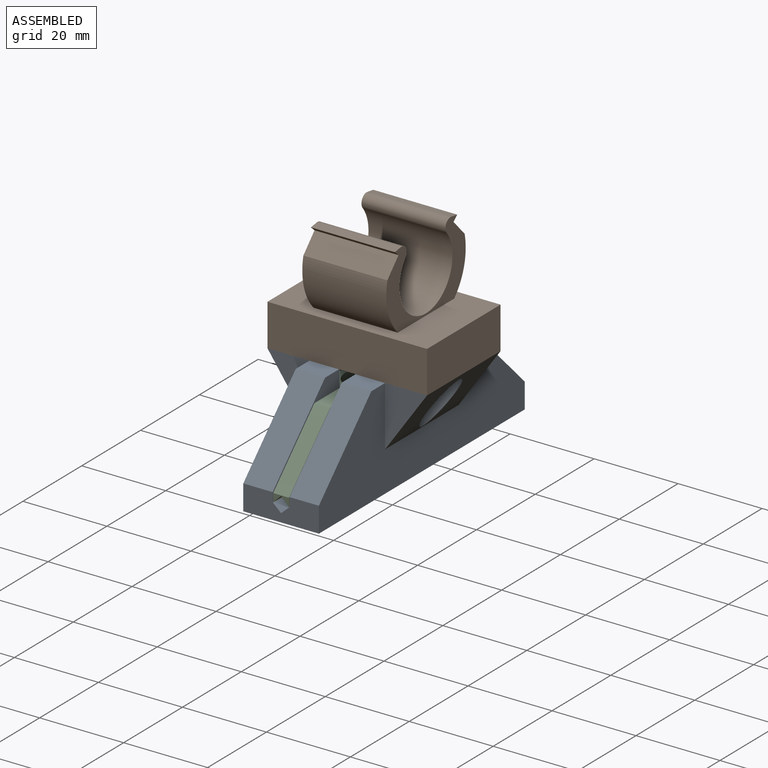
[diagram: assembled view]
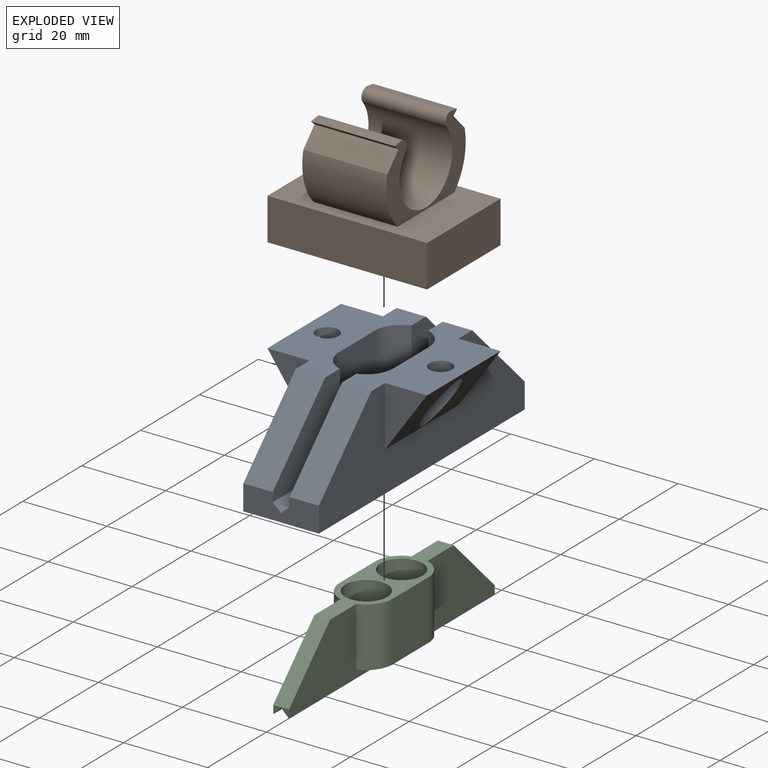
[diagram: exploded view]
GUIDED TOUR — FREECAD ASSEMBLY "Alweco_GreenHouse_Shade_Assembly"

This assembly has 3 components, labeled P0..P2 below (a component is one placed body or linked part; the same part can appear more than once), held together by 2 modeled joints. A joint is a constraint between two components; its type names the relative motion it leaves free:
  FASTENED — locks the two components together rigidly (no relative motion),
  SLIDER — leaves translation along the listed axis free.
Axis/direction vectors are unit vectors and 'through' points are millimeter coordinates, both in the assembly's world frame.

MATES
  1. SLIDER [Slider] "Joint": P0 <-> P2, axis (0.000, 0.000, -1.000) through (6.50, 6.00, 13.83) mm
  2. FASTENED [Fixed] "Joint001": P1 <-> P0, direction (0.000, 0.000, -1.000) through (16.00, -9.50, 23.83) mm

ASSEMBLY ORDER
  1. P0 — the base component [order heuristic]
  2. P2 — core [order heuristic]
  3. P1 [order verified]
Order-tag legend:
  [order verified] — this step's position reverses a verified removal order: the component was checked to insert without passing through the ones already placed.
  [order heuristic] — the first 2 components form the assembly's core: parts whose collision-free extraction could not be verified, listed in mate-graph order.

Of the 3 components, 3 carry a construction recipe — the FreeCAD feature program (sketches with constraints, then the solid features that consume them) that regenerates the part from scratch, quoted from this document or from the linked companion document it references; the rest are supplied as boundary geometry only. The tour below walks the components in assembly order: each is shown spotlighted twice — in the assembled view, then in the exploded view, where a leader line traces a displaced component back to its assembled socket (components that stay in place when exploded have no leader line; saturated green if recipe-attached, orange if geometry-only; every other component desaturated gray) — followed by its recipe or geometry summary and the mates that hold it.
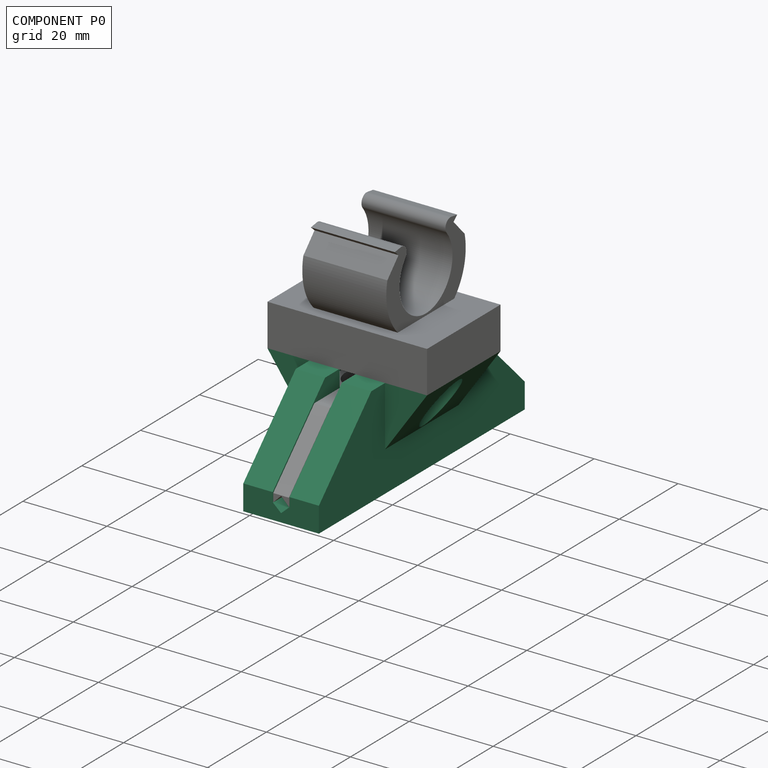
[diagram: component P0 — assembled]
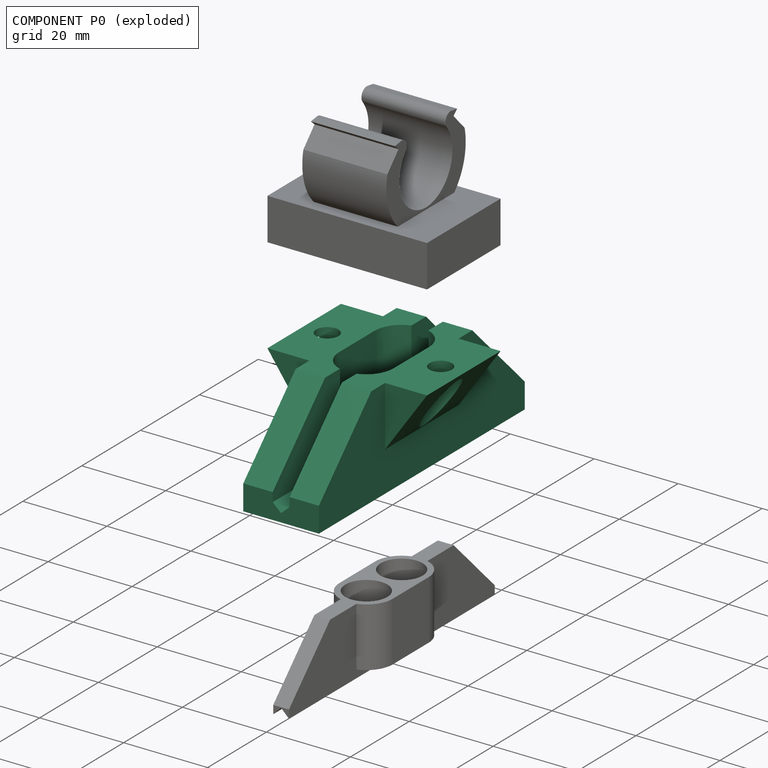
[diagram: component P0 — exploded]
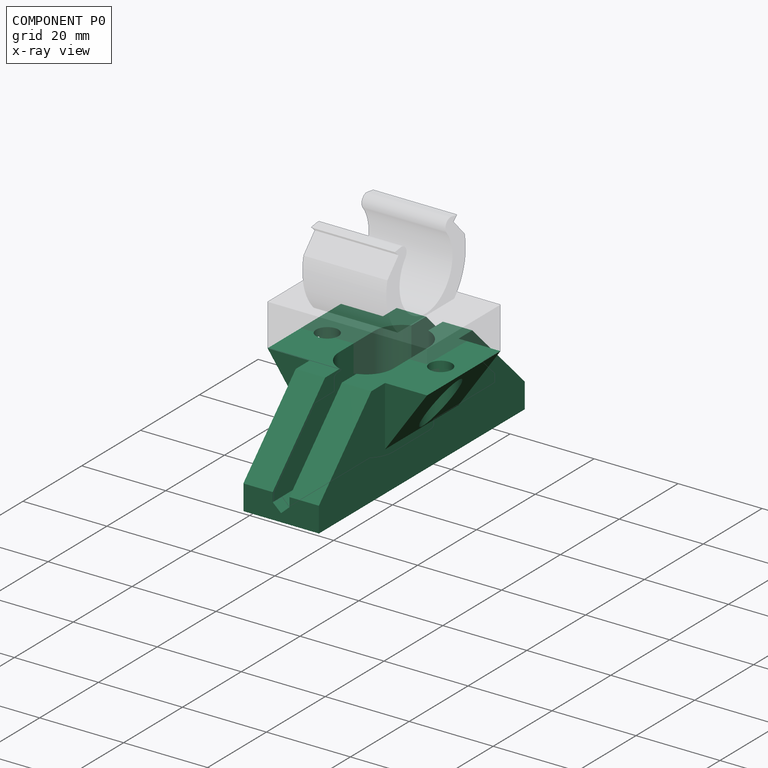
[diagram: component P0 — x-ray view]
COMPONENT P0 — recipe-attached ("Alweco_GreenHouse_Shade_Base", a linked part whose construction recipe lives in a companion FreeCAD document of the same project; that document's serialized recipe follows).
Held by: SLIDER mate "Joint" to P2; FASTENED mate "Joint001" to P1.
Construction recipe (the companion document, serialized — sketch geometry with constraints, then the solid features built on it; lengths are millimeters unless a unit is written):

FCSTD DOCUMENT  (FreeCAD 1.0R39109 (Git))
Label: Alweco_GreenHouse_Shade_Base
License: All rights reserved
objects: Sketcher::SketchObject×5, PartDesign::Pad×2, PartDesign::Pocket×2, PartDesign::Hole×1, PartDesign::Body×1
note: 26 computed .brp shape members not serialized (recipe doc carries the construction recipe); baked Part::Feature solids carry a one-line shape summary decoded from their .brp

FEATURE [Sketcher::SketchObject] Sketch
  ArcFitTolerance = 1e-06
  AttachmentSupport = -> [XZ_Plane]
  FullyConstrained = true
  MakeInternals = false
  MapMode = 5
  Placement = pos=(0,0,0) rot=(1,0,0;1.5708rad)
  sketch-geometry (9):
    g0: LineSegment StartX=-9 StartY=0 StartZ=0 EndX=9 EndY=0 EndZ=0
    g1: LineSegment StartX=0 StartY=2 StartZ=0 EndX=-2 EndY=3.83266 EndZ=0
    g2: LineSegment StartX=0 StartY=2 StartZ=0 EndX=2 EndY=3.83266 EndZ=0
    g3: LineSegment StartX=2 StartY=3.83266 StartZ=0 EndX=2 EndY=23.8327 EndZ=0
    g4: LineSegment StartX=-2 StartY=3.83266 StartZ=0 EndX=-2 EndY=23.8327 EndZ=0
    g5: LineSegment StartX=-2 StartY=23.8327 StartZ=0 EndX=-9 EndY=23.8327 EndZ=0
    g6: LineSegment StartX=2 StartY=23.8327 StartZ=0 EndX=9 EndY=23.8327 EndZ=0
    g7: LineSegment StartX=9 StartY=23.8327 StartZ=0 EndX=9 EndY=0 EndZ=0
    g8: LineSegment StartX=-9 StartY=23.8327 StartZ=0 EndX=-9 EndY=0 EndZ=0
  constraints (26):
    c: PointOnObject(g0,g-1)
    c: PointOnObject(g0,g-1)
    c: PointOnObject(g1,g-2)
    c: Coincident(g2,g1)
    c: Symmetric(g1,g2,g-2)
    c: DistanceX(g1,g2) = 4
    c: Angle(g2,g1) = 1.65806
    c: Coincident(g3,g2)
    c: Vertical(g3)
    c: Coincident(g4,g1)
    c: Symmetric(g4,g3,g-2)
    c: DistanceY(g3,g3) = 20  'InnerHeight'
    c: DistanceY(g-1,g1) = 2
    c: Coincident(g5,g4)
    c: Horizontal(g5)
    c: Coincident(g6,g3)
    c: Coincident(g7,g6)
    c: Coincident(g7,g0)
    c: Coincident(g8,g5)
    c: Coincident(g8,g0)
    c: Vertical(g8)
    c: Vertical(g7)
    c: Symmetric(g6,g5,g-2)
    c: DistanceX(g6,g6) = 7
    c: DistanceY(g8,g8) = 23.8327  'Height'
    c: DistanceX(g0,g0) = 18  'Width'
FEATURE [PartDesign::Pad] Pad
  Direction = (0,-1,2e-16)
  Length = 70
  Length2 = 10
  Midplane = true
  Placement = pos=(0,0,0) rot=(1,0,0;1.5708rad)
  Profile = -> Sketch
  ReferenceAxis = -> Sketch [N_Axis]
  Refine = true
  Suppressed = false
  Type = 0
FEATURE [Sketcher::SketchObject] Sketch001
  ArcFitTolerance = 1e-06
  AttachmentSupport = -> [Pad]
  FullyConstrained = true
  MakeInternals = false
  MapMode = 5
  Placement = pos=(0,5.3e-15,23.8327) rot=(0,0,1;3.14159rad)
  expr: .Constraints.Height = 25 mm - .Constraints.Width
  sketch-geometry (4):
    g0: ArcOfCircle CenterX=0 CenterY=6 CenterZ=0 NormalX=0 NormalY=0 NormalZ=1 AngleXU=0 Radius=6.5 StartAngle=0 EndAngle=3.14159
    g1: ArcOfCircle CenterX=0 CenterY=-6 CenterZ=0 NormalX=0 NormalY=0 NormalZ=1 AngleXU=0 Radius=6.5 StartAngle=3.14159 EndAngle=6.28319
    g2: LineSegment StartX=6.5 StartY=6 StartZ=0 EndX=6.5 EndY=-6 EndZ=0
    g3: LineSegment StartX=-6.5 StartY=6 StartZ=0 EndX=-6.5 EndY=-6 EndZ=0
  constraints (9):
    c: Tangent(g0,g2) = 1.5708
    c: Tangent(g0,g3) = -1.5708
    c: Tangent(g1,g2) = 1.5708
    c: Tangent(g1,g3) = -1.5708
    c: Equal(g0,g1)
    c: PointOnObject(g0,g-2)
    c: Symmetric(g0,g1,g-1)
    c: Distance(g1,g1) = 13  'Width'
    c: DistanceY(g1,g0) = 12  'Height'
FEATURE [PartDesign::Pocket] Pocket
  BaseFeature = -> Pad
  Direction = (0,0,-1)
  Length = 20
  Length2 = 5
  Placement = pos=(0,0,0) rot=(1,0,0;1.5708rad)
  Profile = -> Sketch001
  ReferenceAxis = -> Sketch001 [N_Axis]
  Refine = true
  Suppressed = false
  Type = 0
FEATURE [Sketcher::SketchObject] Sketch002
  ArcFitTolerance = 1e-06
  AttachmentSupport = -> [XZ_Plane]
  FullyConstrained = true
  MakeInternals = false
  MapMode = 5
  Placement = pos=(0,0,0) rot=(1,0,0;1.5708rad)
  expr: Constraints[15] = <<Sketch>>.Constraints.Width
  expr: Constraints[5] = <<Sketch>>.Constraints.Height
  sketch-geometry (6):
    g0: LineSegment StartX=9 StartY=23.8327 StartZ=0 EndX=19 EndY=23.8327 EndZ=0
    g1: LineSegment StartX=-9 StartY=23.8327 StartZ=0 EndX=-19 EndY=23.8327 EndZ=0
    g2: LineSegment StartX=19 StartY=23.8327 StartZ=0 EndX=9 EndY=9.55118 EndZ=0
    g3: LineSegment StartX=9 StartY=23.8327 StartZ=0 EndX=9 EndY=9.55118 EndZ=0
    g4: LineSegment StartX=-19 StartY=23.8327 StartZ=0 EndX=-9 EndY=9.55118 EndZ=0
    g5: LineSegment StartX=-9 StartY=9.55118 StartZ=0 EndX=-9 EndY=23.8327 EndZ=0
  constraints (17):
    c: Distance(g0) = 10
    c: Horizontal(g0)
    c: Distance(g1) = 10
    c: Horizontal(g1)
    c: Symmetric(g1,g0,g-2)
    c: DistanceY(g-1,g0) = 23.8327
    c: Coincident(g2,g0)
    c: Coincident(g3,g0)
    c: Coincident(g3,g2)
    c: Vertical(g3)
    c: Coincident(g4,g1)
    c: Coincident(g5,g4)
    c: Coincident(g5,g1)
    c: Symmetric(g2,g4,g-2)
    c: Angle(g0,g2) = 0.959931
    c: DistanceX(g1,g0) = 18
    c: DistanceX(g1,g0) = 38  'FullWidth'
FEATURE [PartDesign::Pad] Pad001
  BaseFeature = -> Pocket
  Direction = (0,-1,2e-16)
  Length = 25
  Length2 = 10
  Midplane = true
  Placement = pos=(0,0,0) rot=(1,0,0;1.5708rad)
  Profile = -> Sketch002
  ReferenceAxis = -> Sketch002 [N_Axis]
  Refine = true
  Suppressed = false
  Type = 0
FEATURE [Sketcher::SketchObject] Sketch003
  ArcFitTolerance = 1e-06
  AttachmentOffset = pos=(0,0,-14) rot=(0,0,1;0rad)
  AttachmentSupport = -> [Pad001]
  FullyConstrained = true
  MakeInternals = false
  MapMode = 5
  Placement = pos=(0,5.3e-15,9.83266) rot=(0,0,1;3.14159rad)
  sketch-geometry (2):
    g0: Circle CenterX=-13.5 CenterY=0 CenterZ=0 NormalX=0 NormalY=0 NormalZ=1 AngleXU=0 Radius=2.5
    g1: Circle CenterX=13.5 CenterY=0 CenterZ=0 NormalX=0 NormalY=0 NormalZ=1 AngleXU=0 Radius=2.5
  constraints (6):
    c: PointOnObject(g0,g-1)
    c: Equal(g1,g0)
    c: Diameter(g1) = 5
    c: Symmetric(g0,g1,g-2)
    c: DistanceX(g0,g-1) = 13.5
    c: Distance(g0,g1) = 27  'HoleSperation'
FEATURE [PartDesign::Hole] Hole
  BaseFeature = -> Pad001
  CustomThreadClearance = 0
  Depth = 25
  DepthType = 0
  Diameter = 5.3
  DrillForDepth = false
  DrillPoint = 1
  DrillPointAngle = 118
  HoleCutCountersinkAngle = 90
  HoleCutCustomValues = false
  HoleCutDepth = 12.3
  HoleCutDiameter = 8.5
  HoleCutType = 1
  ModelThread = false
  Placement = pos=(0,0,0) rot=(1,0,0;1.5708rad)
  Profile = -> Sketch003
  Refine = true
  Reversed = true
  Suppressed = false
  Tapered = false
  TaperedAngle = 90
  ThreadClass = 0
  ThreadDepth = 25
  ThreadDepthType = 0
  ThreadDirection = 0
  ThreadFit = 1
  ThreadSize = 13
  ThreadType = 2
  Threaded = false
  UseCustomThreadClearance = false
FEATURE [Sketcher::SketchObject] Sketch005
  ArcFitTolerance = 1e-06
  AttachmentSupport = -> [YZ_Plane]
  FullyConstrained = true
  MakeInternals = false
  MapMode = 5
  Placement = pos=(0,0,0) rot=(0.57735,0.57735,0.57735;2.0944rad)
  sketch-geometry (6):
    g0: LineSegment StartX=-36 StartY=25 StartZ=0 EndX=-36 EndY=5 EndZ=0
    g1: LineSegment StartX=-36 StartY=25 StartZ=0 EndX=-16 EndY=25 EndZ=0
    g2: LineSegment StartX=-16 StartY=25 StartZ=0 EndX=-36 EndY=5 EndZ=0
    g3: LineSegment StartX=16 StartY=25 StartZ=0 EndX=36 EndY=25 EndZ=0
    g4: LineSegment StartX=36 StartY=25 StartZ=0 EndX=36 EndY=5 EndZ=0
    g5: LineSegment StartX=36 StartY=5 StartZ=0 EndX=16 EndY=25 EndZ=0
  constraints (17):
    c: Vertical(g0)
    c: Coincident(g1,g0)
    c: Horizontal(g1)
    c: Coincident(g2,g1)
    c: Coincident(g2,g0)
    c: Equal(g1,g0)
    c: DistanceX(g1,g1) = 20
    c: Horizontal(g3)
    c: Coincident(g4,g3)
    c: Vertical(g4)
    c: Coincident(g5,g4)
    c: Coincident(g5,g3)
    c: Equal(g1,g3)
    c: Equal(g3,g4)
    c: Symmetric(g0,g3,g-2)
    c: DistanceX(g0,g-1) = 36
    c: DistanceY(g-1,g0) = 25
FEATURE [PartDesign::Pocket] Pocket001
  BaseFeature = -> Hole
  Direction = (-1,0,0)
  Length = 22
  Length2 = 5
  Midplane = true
  Placement = pos=(0,0,0) rot=(1,0,0;1.5708rad)
  Profile = -> Sketch005
  ReferenceAxis = -> Sketch005 [N_Axis]
  Refine = true
  Suppressed = false
  Type = 0
FEATURE [PartDesign::Body] Body  label="Alweco_GreenHouse_Shade_Base"
  AllowCompound = false
  Group = -> [Sketch,Pad,Sketch001,Pocket,Sketch002,Pad001,Sketch003,Hole,Sketch005,Pocket001]
  Origin = -> Origin
  Tip = -> Pocket001
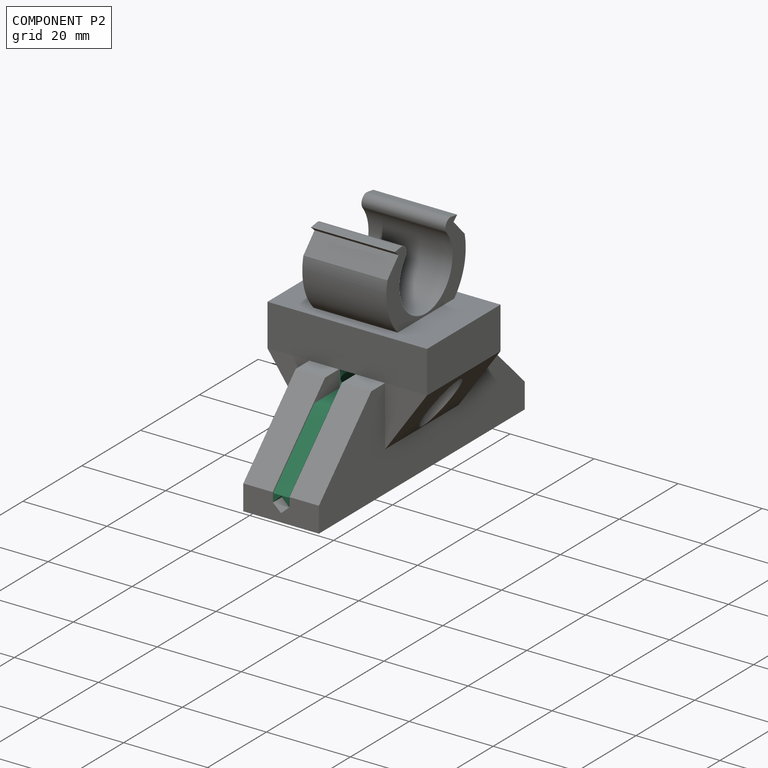
[diagram: component P2 — assembled]
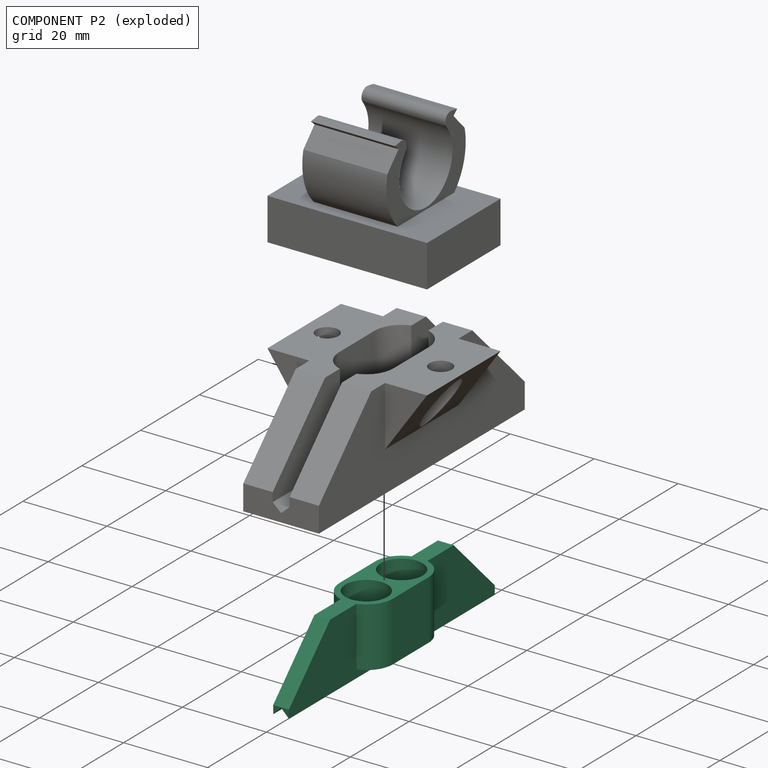
[diagram: component P2 — exploded]
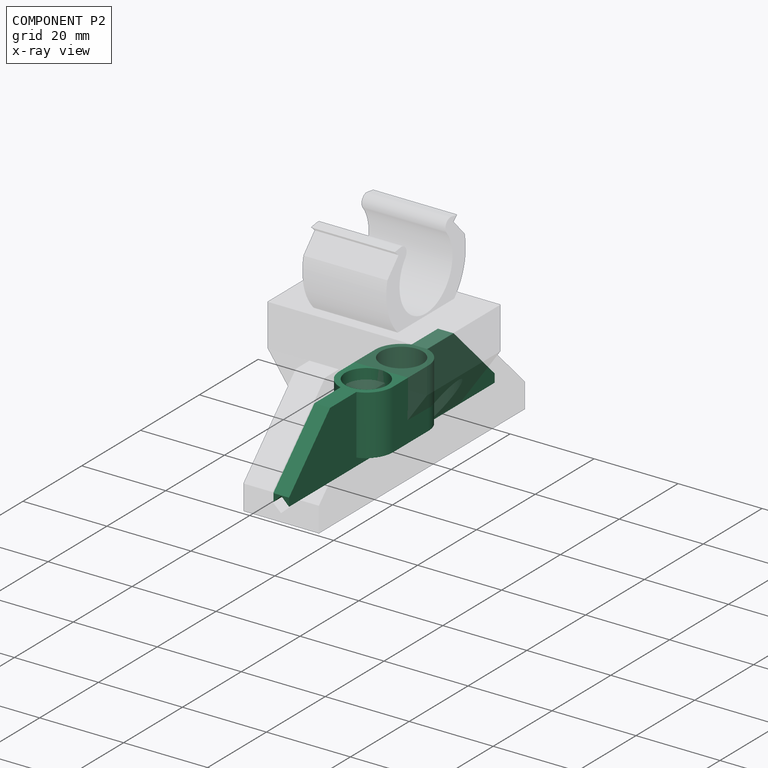
[diagram: component P2 — x-ray view]
COMPONENT P2 — recipe-attached ("Alweco_GreenHouse_Shade_SpringInsert", a linked part whose construction recipe lives in a companion FreeCAD document of the same project; that document's serialized recipe follows).
Held by: SLIDER mate "Joint" to P0.
Construction recipe (the companion document, serialized — sketch geometry with constraints, then the solid features built on it; lengths are millimeters unless a unit is written):

FCSTD DOCUMENT  (FreeCAD 1.0R39109 (Git))
Label: Alweco_GreenHouse_Shade_SpringInsert
License: All rights reserved
objects: Sketcher::SketchObject×4, PartDesign::Pad×2, PartDesign::Pocket×2, PartDesign::Fillet×1, PartDesign::Body×1
note: 24 computed .brp shape members not serialized (recipe doc carries the construction recipe); baked Part::Feature solids carry a one-line shape summary decoded from their .brp
EXTERNAL_REF file=Alweco_GreenHouse_Shade_Base.FCStd obj=Sketch
EXTERNAL_REF file=Alweco_GreenHouse_Shade_Base.FCStd obj=Sketch001

FEATURE [Sketcher::SketchObject] Sketch
  ArcFitTolerance = 1e-06
  AttachmentSupport = -> [XZ_Plane]
  FullyConstrained = true
  MakeInternals = false
  MapMode = 5
  Placement = pos=(0,0,0) rot=(1,0,0;1.5708rad)
  expr: .Constraints.Height = <<Alweco_GreenHouse_Shade_Base>>#<<Sketch>>.Constraints.InnerHeight - 4 mm
  expr: Constraints[9] = 3.75 mm
  sketch-geometry (5):
    g0: LineSegment StartX=0 StartY=1.875 StartZ=0 EndX=-1.875 EndY=0 EndZ=0
    g1: LineSegment StartX=0 StartY=1.875 StartZ=0 EndX=1.875 EndY=0 EndZ=0
    g2: LineSegment StartX=-1.875 StartY=0 StartZ=0 EndX=-1.875 EndY=16 EndZ=0
    g3: LineSegment StartX=1.875 StartY=0 StartZ=0 EndX=1.875 EndY=16 EndZ=0
    g4: LineSegment StartX=-1.875 StartY=16 StartZ=0 EndX=1.875 EndY=16 EndZ=0
  constraints (15):
    c: PointOnObject(g0,g-2)
    c: Coincident(g1,g0)
    c: Symmetric(g0,g1,g-2)
    c: Coincident(g2,g0)
    c: Vertical(g2)
    c: Coincident(g3,g1)
    c: Vertical(g3)
    c: PointOnObject(g1,g-1)
    c: Angle(g0,g1) = 1.5708
    c: DistanceX(g0,g1) = 3.75
    c: Coincident(g4,g2)
    c: Coincident(g4,g3)
    c: Horizontal(g4)
    c: DistanceY(g3,g3) = 16  'Height'
    c: DistanceY(g-1,g0) = 1.875  'SlotHeight'
FEATURE [PartDesign::Pad] Pad
  Direction = (0,-1,2e-16)
  Length = 70
  Length2 = 10
  Midplane = true
  Placement = pos=(0,0,0) rot=(1,0,0;1.5708rad)
  Profile = -> Sketch
  ReferenceAxis = -> Sketch [N_Axis]
  Refine = true
  Suppressed = false
  Type = 0
FEATURE [Sketcher::SketchObject] Sketch001
  ArcFitTolerance = 1e-06
  AttachmentSupport = -> [Pad]
  FullyConstrained = true
  MakeInternals = false
  MapMode = 5
  Placement = pos=(0,3.6e-15,16) rot=(0,0,1;3.14159rad)
  expr: Constraints[7] = <<Alweco_GreenHouse_Shade_Base>>#<<Sketch001>>.Constraints.Height
  expr: Constraints[8] = <<Alweco_GreenHouse_Shade_Base>>#<<Sketch001>>.Constraints.Width - 0.3 mm
  sketch-geometry (4):
    g0: ArcOfCircle CenterX=0 CenterY=6 CenterZ=0 NormalX=0 NormalY=0 NormalZ=1 AngleXU=0 Radius=6.35 StartAngle=1e-16 EndAngle=3.14159
    g1: ArcOfCircle CenterX=0 CenterY=-6 CenterZ=0 NormalX=0 NormalY=0 NormalZ=1 AngleXU=0 Radius=6.35 StartAngle=3.14159 EndAngle=6.28319
    g2: LineSegment StartX=6.35 StartY=6 StartZ=0 EndX=6.35 EndY=-6 EndZ=0
    g3: LineSegment StartX=-6.35 StartY=6 StartZ=0 EndX=-6.35 EndY=-6 EndZ=0
  constraints (9):
    c: Tangent(g0,g2) = 1.5708
    c: Tangent(g0,g3) = -1.5708
    c: Tangent(g1,g2) = 1.5708
    c: Tangent(g1,g3) = -1.5708
    c: Equal(g0,g1)
    c: PointOnObject(g0,g-2)
    c: Symmetric(g0,g1,g-1)
    c: DistanceY(g1,g0) = 12
    c: Distance(g1,g1) = 12.7
FEATURE [PartDesign::Pad] Pad001
  BaseFeature = -> Pad
  Direction = (0,0,1)
  Length = 14.125
  Length2 = 10
  Placement = pos=(0,0,0) rot=(1,0,0;1.5708rad)
  Profile = -> Sketch001
  ReferenceAxis = -> Sketch001 [N_Axis]
  Refine = true
  Reversed = true
  Suppressed = false
  Type = 0
  expr: Length = <<Sketch>>.Constraints.Height - <<Sketch>>.Constraints.SlotHeight
FEATURE [Sketcher::SketchObject] Sketch005  label="Sketch002"
  ArcFitTolerance = 1e-06
  AttachmentSupport = -> [YZ_Plane]
  FullyConstrained = true
  MakeInternals = false
  MapMode = 5
  Placement = pos=(0,0,0) rot=(0.57735,0.57735,0.57735;2.0944rad)
  sketch-geometry (6):
    g0: LineSegment StartX=-36 StartY=25 StartZ=0 EndX=-36 EndY=1 EndZ=0
    g1: LineSegment StartX=-36 StartY=25 StartZ=0 EndX=-12 EndY=25 EndZ=0
    g2: LineSegment StartX=-12 StartY=25 StartZ=0 EndX=-36 EndY=1 EndZ=0
    g3: LineSegment StartX=12 StartY=25 StartZ=0 EndX=36 EndY=25 EndZ=0
    g4: LineSegment StartX=36 StartY=25 StartZ=0 EndX=36 EndY=1 EndZ=0
    g5: LineSegment StartX=36 StartY=1 StartZ=0 EndX=12 EndY=25 EndZ=0
  constraints (17):
    c: Vertical(g0)
    c: Coincident(g1,g0)
    c: Horizontal(g1)
    c: Coincident(g2,g1)
    c: Coincident(g2,g0)
    c: Equal(g1,g0)
    c: DistanceX(g1,g1) = 24
    c: Horizontal(g3)
    c: Coincident(g4,g3)
    c: Vertical(g4)
    c: Coincident(g5,g4)
    c: Coincident(g5,g3)
    c: Equal(g1,g3)
    c: Equal(g3,g4)
    c: Symmetric(g0,g3,g-2)
    c: DistanceX(g0,g-1) = 36
    c: DistanceY(g-1,g0) = 25
FEATURE [Sketcher::SketchObject] Sketch006
  ArcFitTolerance = 1e-06
  AttachmentSupport = -> [Pad001]
  FullyConstrained = true
  MakeInternals = false
  MapMode = 5
  Placement = pos=(0,3.1e-15,16) rot=(0,0,1;3.14159rad)
  sketch-geometry (2):
    g0: Circle CenterX=0 CenterY=6 CenterZ=0 NormalX=0 NormalY=0 NormalZ=1 AngleXU=0 Radius=5
    g1: Circle CenterX=0 CenterY=-6 CenterZ=0 NormalX=0 NormalY=0 NormalZ=1 AngleXU=0 Radius=5
  constraints (5):
    c: PointOnObject(g0,g-2)
    c: Equal(g1,g0)
    c: Diameter(g0) = 10
    c: Symmetric(g0,g1,g-1)
    c: DistanceY(g1,g0) = 12
FEATURE [PartDesign::Pocket] Pocket
  BaseFeature = -> Pad001
  Direction = (0,0,-1)
  Length = 12
  Length2 = 5
  Placement = pos=(0,0,0) rot=(1,0,0;1.5708rad)
  Profile = -> Sketch006
  ReferenceAxis = -> Sketch006 [N_Axis]
  Refine = true
  Suppressed = false
  Type = 0
FEATURE [PartDesign::Pocket] Pocket001
  BaseFeature = -> Pocket
  Direction = (-1,0,0)
  Length = 5
  Length2 = 5
  Midplane = true
  Placement = pos=(0,0,0) rot=(1,0,0;1.5708rad)
  Profile = -> Sketch005
  ReferenceAxis = -> Sketch005 [N_Axis]
  Refine = true
  Suppressed = false
  Type = 0
FEATURE [PartDesign::Fillet] Fillet
  Base = -> Pocket001 [Face21,Face20]
  BaseFeature = -> Pocket001
  Placement = pos=(0,0,0) rot=(1,0,0;1.5708rad)
  Radius = 5
  Refine = true
  SupportTransform = false
  Suppressed = false
  UseAllEdges = false
FEATURE [PartDesign::Body] Body  label="Alweco_GreenHouse_Shade_SpringInsert"
  AllowCompound = false
  Group = -> [Sketch,Pad,Sketch001,Pad001,Sketch006,Pocket,Sketch005,Pocket001,Fillet]
  Origin = -> Origin
  Tip = -> Fillet
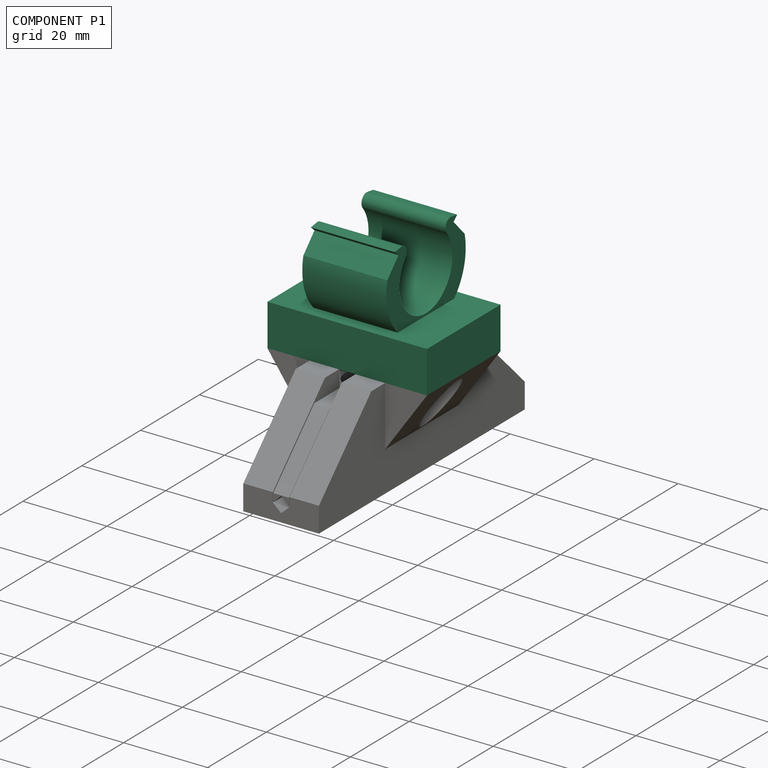
[diagram: component P1 — assembled]
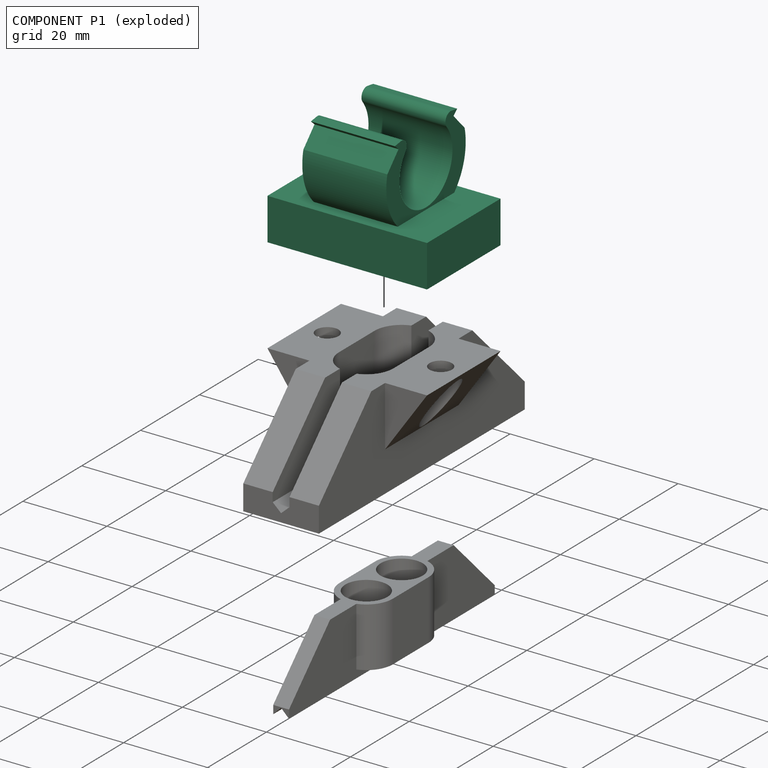
[diagram: component P1 — exploded]
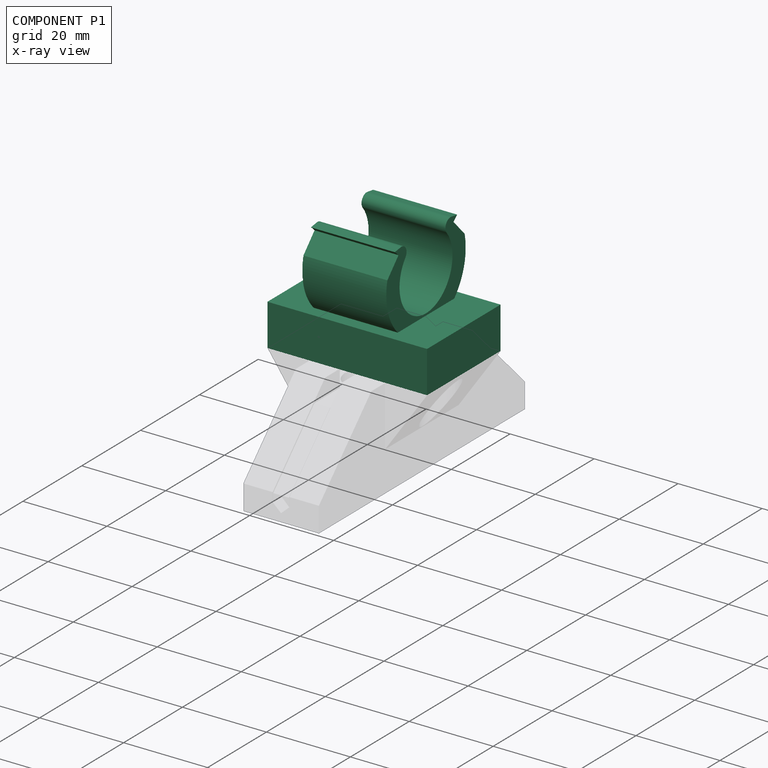
[diagram: component P1 — x-ray view]
COMPONENT P1 — recipe-attached ("Alweco_GreenHouse_Shade_Hook", a linked part whose construction recipe lives in a companion FreeCAD document of the same project; that document's serialized recipe follows).
Held by: FASTENED mate "Joint001" to P0.
Construction recipe (the companion document, serialized — sketch geometry with constraints, then the solid features built on it; lengths are millimeters unless a unit is written):

FCSTD DOCUMENT  (FreeCAD 1.0R39109 (Git))
Label: Alweco_GreenHouse_Shade_Hook
License: All rights reserved
objects: Sketcher::SketchObject×3, PartDesign::Pad×2, PartDesign::Pocket×1, PartDesign::Chamfer×1, PartDesign::Body×1
note: 19 computed .brp shape members not serialized (recipe doc carries the construction recipe); baked Part::Feature solids carry a one-line shape summary decoded from their .brp
EXTERNAL_REF file=Alweco_GreenHouse_Shade_Base.FCStd obj=Pad001
EXTERNAL_REF file=Alweco_GreenHouse_Shade_Base.FCStd obj=Sketch002
EXTERNAL_REF file=Alweco_GreenHouse_Shade_Base.FCStd obj=Sketch003

FEATURE [Sketcher::SketchObject] Sketch
  ArcFitTolerance = 1e-06
  AttachmentSupport = -> [XY_Plane]
  FullyConstrained = true
  MakeInternals = false
  MapMode = 5
  expr: Constraints[8] = <<Alweco_GreenHouse_Shade_Base>>#Pad001.Length
  expr: Constraints[9] = <<Alweco_GreenHouse_Shade_Base>>#<<Sketch002>>.Constraints.FullWidth
  sketch-geometry (4):
    g0: LineSegment StartX=-12.5 StartY=19 StartZ=0 EndX=-12.5 EndY=-19 EndZ=0
    g1: LineSegment StartX=-12.5 StartY=-19 StartZ=0 EndX=12.5 EndY=-19 EndZ=0
    g2: LineSegment StartX=12.5 StartY=-19 StartZ=0 EndX=12.5 EndY=19 EndZ=0
    g3: LineSegment StartX=12.5 StartY=19 StartZ=0 EndX=-12.5 EndY=19 EndZ=0
  constraints (10):
    c: Coincident(g0,g1)
    c: Coincident(g1,g2)
    c: Coincident(g2,g3)
    c: Coincident(g3,g0)
    c: Vertical(g0)
    c: Horizontal(g1)
    c: Symmetric(g2,g1,g-1)
    c: Symmetric(g0,g2,g-2)
    c: DistanceX(g3,g3) = 25
    c: DistanceY(g2,g2) = 38
FEATURE [PartDesign::Pad] Pad
  Direction = (0,0,1)
  Length = 10
  Length2 = 10
  Profile = -> Sketch
  ReferenceAxis = -> Sketch [N_Axis]
  Refine = true
  Suppressed = false
  Type = 0
FEATURE [Sketcher::SketchObject] Sketch001
  ArcFitTolerance = 1e-06
  AttachmentSupport = -> [Pad]
  FullyConstrained = true
  MakeInternals = false
  MapMode = 5
  Placement = pos=(0,0,0) rot=(1,0,0;3.14159rad)
  expr: Constraints[4] = <<Alweco_GreenHouse_Shade_Base>>#<<Sketch003>>.Constraints.HoleSperation
  sketch-geometry (2):
    g0: Circle CenterX=0 CenterY=13.5 CenterZ=0 NormalX=0 NormalY=0 NormalZ=1 AngleXU=0 Radius=4.1
    g1: Circle CenterX=0 CenterY=-13.5 CenterZ=0 NormalX=0 NormalY=0 NormalZ=1 AngleXU=0 Radius=4.1
  constraints (5):
    c: PointOnObject(g0,g-2)
    c: Equal(g0,g1)
    c: Diameter(g0) = 8.2
    c: Symmetric(g1,g0,g-1)
    c: DistanceY(g1,g0) = 27
FEATURE [PartDesign::Pocket] Pocket
  BaseFeature = -> Pad
  Direction = (0,0,1)
  Length = 8
  Length2 = 5
  Profile = -> Sketch001
  ReferenceAxis = -> Sketch001 [N_Axis]
  Refine = true
  Suppressed = false
  Type = 0
FEATURE [PartDesign::Chamfer] Chamfer
  Angle = 45
  Base = -> Pocket [Face10,Face9]
  BaseFeature = -> Pocket
  ChamferType = 0
  FlipDirection = false
  Refine = true
  Size = 3.3
  Size2 = 1
  SupportTransform = false
  Suppressed = false
  UseAllEdges = false
FEATURE [Sketcher::SketchObject] Sketch003
  ArcFitTolerance = 1e-06
  AttachmentSupport = -> [XZ_Plane]
  FullyConstrained = false
  MakeInternals = false
  MapMode = 5
  Placement = pos=(0,0,0) rot=(1,0,0;1.5708rad)
  sketch-geometry (13):
    g0: ArcOfCircle CenterX=2e-16 CenterY=19.5 CenterZ=0 NormalX=0 NormalY=0 NormalZ=1 AngleXU=0 Radius=9 StartAngle=2.46192 EndAngle=6.96286
    g1: ArcOfCircle CenterX=-8.36111 CenterY=26.2568 CenterZ=0 NormalX=0 NormalY=0 NormalZ=1 AngleXU=0 Radius=1.75 StartAngle=5.60351 EndAngle=8.00207
    g2: ArcOfCircle CenterX=8.36111 CenterY=26.2568 CenterZ=0 NormalX=0 NormalY=0 NormalZ=1 AngleXU=0 Radius=1.75 StartAngle=1.42271 EndAngle=3.82127
    g3: LineSegment StartX=-8.61932 StartY=27.9876 StartZ=0 EndX=-10.5974 EndY=27.6926 EndZ=0
    g4: LineSegment StartX=8.61932 StartY=27.9876 StartZ=0 EndX=10.5974 EndY=27.6926 EndZ=0
    g5: LineSegment StartX=-10.5974 StartY=27.6926 StartZ=0 EndX=-9.34743 EndY=26.5861 EndZ=0
    g6: LineSegment StartX=-9.34743 StartY=26.5861 StartZ=0 EndX=-13.1389 EndY=22.6017 EndZ=0
    g7: LineSegment StartX=10.5974 StartY=27.6926 StartZ=0 EndX=9.34743 EndY=26.5861 EndZ=0
    g8: LineSegment StartX=9.34743 StartY=26.5861 StartZ=0 EndX=13.1389 EndY=22.6017 EndZ=0
    g9: ArcOfCircle CenterX=2e-16 CenterY=19.5 CenterZ=0 NormalX=0 NormalY=0 NormalZ=1 AngleXU=0 Radius=13.5 StartAngle=2.90977 EndAngle=4.25183
    g10: ArcOfCircle CenterX=2e-16 CenterY=19.5 CenterZ=0 NormalX=0 NormalY=0 NormalZ=1 AngleXU=0 Radius=13.5 StartAngle=5.17294 EndAngle=6.51501
    g11: LineSegment StartX=-6 StartY=7.40661 StartZ=0 EndX=6 EndY=7.40661 EndZ=0
    g12: LineSegment [constr] StartX=-5.9647 StartY=12.7604 StartZ=0 EndX=-8.94706 EndY=9.39059 EndZ=0
  constraints (33):
    c: Radius(g0) = 9  'IR'
    c: Symmetric(g0,g0,g-2)
    c: Coincident(g5,g3)
    c: Coincident(g6,g5)
    c: Tangent(g3,g1) = -1.5708
    c: Angle(g5,g3) = 0.872665
    c: Distance(g6,g6) = 5.5
    c: DistanceX(g5,g5) = 1.25
    c: Symmetric(g3,g4,g-2)
    c: Coincident(g7,g4)
    c: Coincident(g8,g7)
    c: Symmetric(g7,g5,g-2)
    c: Distance(g3,g3) = 2
    c: DistanceY(g-1,g0) = 19.5
    c: Coincident(g9,g0)
    c: Coincident(g9,g6)
    c: Coincident(g10,g0)
    c: Coincident(g10,g8)
    c: Coincident(g11,g9)
    c: Coincident(g11,g10)
    c: Symmetric(g10,g9,g-2)
    c: Equal(g8,g6)
    c: PointOnObject(g12,g0)
    c: PointOnObject(g12,g9)
    c: Perpendicular(g0,g12)
    c: Distance(g12,g12) = 4.5
    c: DistanceX(g0,g0) = 14
    c: DistanceX(g11,g11) = 12
    c: Tangent(g1,g0) = 1.5708
    c: Tangent(g2,g0) = 1.5708
    c: Angle(g4,g7) = 0.872665
    c: Tangent(g4,g2) = 1.5708
    c: Radius(g1) = 1.75
FEATURE [PartDesign::Pad] Pad001
  BaseFeature = -> Chamfer
  Direction = (0,-1,2e-16)
  Length = 20
  Length2 = 10
  Midplane = true
  Profile = -> Sketch003
  ReferenceAxis = -> Sketch003 [N_Axis]
  Refine = true
  Suppressed = false
  Type = 0
FEATURE [PartDesign::Body] Body  label="Alweco_GreenHouse_Shade_Hook"
  AllowCompound = false
  Group = -> [Sketch,Pad,Sketch001,Pocket,Chamfer,Sketch003,Pad001]
  Origin = -> Origin
  Tip = -> Pad001
PROVENANCE & LICENSES
Assembly and component geometry: a FreeCAD (.FCStd) document from a public repository crawl; components, placements and joints were extracted with FreeCAD and each solid tessellated.
Construction recipes: the document's own serialized feature recipes (and, for linked parts, the recipes of companion documents from the same project).
License: gpl-3.0.
Joints: native FreeCAD joints and A2plus constraints are mapped to standard mate types.
Verification: 3 of this assembly's 3 components carry a construction recipe (3 from linked companion documents in the same project); the rest are geometry-only. Every component's tessellation passed the extraction mesh gates (mesh-volume checksum against the B-rep where available, bounding-box inflation <= 2%).
Renders: orthographic iso camera (az 35 / el 25); the floor grid conveys scale (grid pitch printed in each image; no ruler). In the exploded view each component is displaced by its stored offset vector: the offsets alone carry the explosion direction (mate normal/axis signs are not orientation cues and do not encode it), and separation distances are assigned per mate-chain, not proportionally to assembly-order depth.
